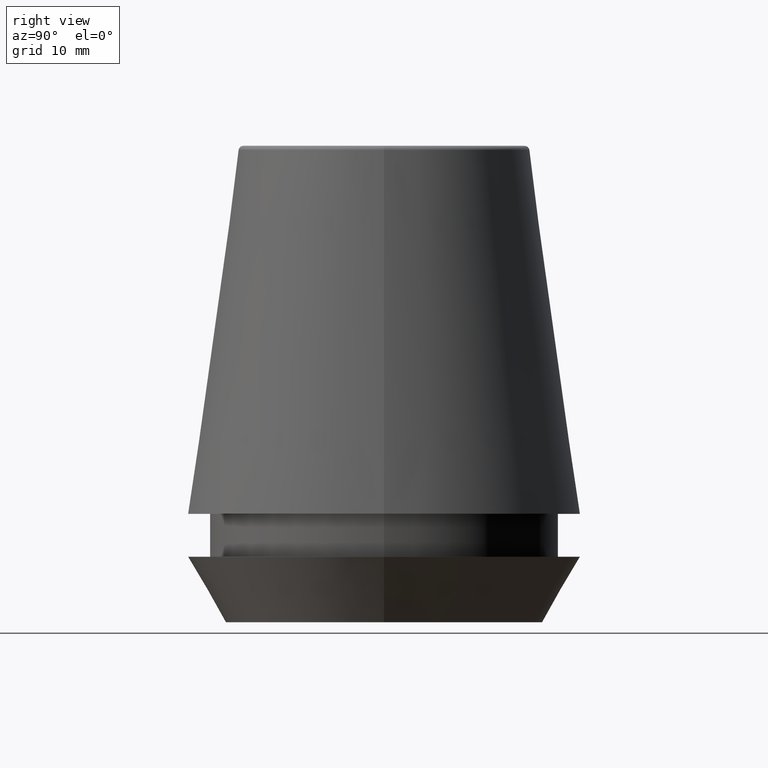
[diagram: clean part render]
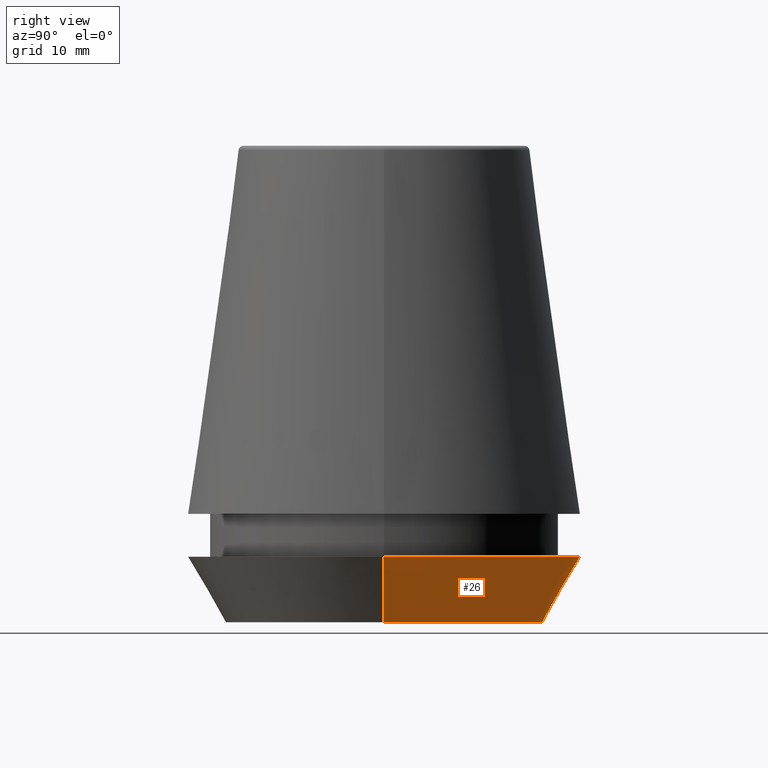
[diagram: same view with one face highlighted and labeled with its STEP entity id]
A machine part, right view. The second image highlights one B-rep face of the part: STEP entity #26.
In plain terms, the highlighted conical surface has half-angle 30 deg.
Its self-contained STEP definition (entity closure, byte-faithful):
#1 = DIRECTION ( 'NONE',  ( 1.000000000000000000, 0.0000000000000000000, 0.0000000000000000000 ) ) ;
#4 = EDGE_CURVE ( 'NONE', #273, #23, #179, .T. ) ;
#6 = ORIENTED_EDGE ( 'NONE', *, *, #310, .T. ) ;
#7 = CARTESIAN_POINT ( 'NONE',  ( 0.0000000000000000000, 0.0000000000000000000, 0.0000000000000000000 ) ) ;
#23 = VERTEX_POINT ( 'NONE', #118 ) ;
#26 = ADVANCED_FACE ( 'NONE', ( #64 ), #275, .T. ) ;
#49 = CARTESIAN_POINT ( 'NONE',  ( -13.32457351945710200, 1.826228424826902600E-015, 0.0000000000000000000 ) ) ;
#52 = DIRECTION ( 'NONE',  ( -0.0000000000000000000, -0.0000000000000000000, 1.000000000000000000 ) ) ;
#58 = ORIENTED_EDGE ( 'NONE', *, *, #195, .F. ) ;
#64 = FACE_OUTER_BOUND ( 'NONE', #187, .T. ) ;
#69 = ORIENTED_EDGE ( 'NONE', *, *, #269, .F. ) ;
#75 = VERTEX_POINT ( 'NONE', #249 ) ;
#87 = DIRECTION ( 'NONE',  ( -0.0000000000000000000, -0.0000000000000000000, 1.000000000000000000 ) ) ;
#96 = VECTOR ( 'NONE', #354, 999.9999999999998900 ) ;
#98 = DIRECTION ( 'NONE',  ( 0.4999999999999947300, 0.0000000000000000000, 0.8660254037844418200 ) ) ;
#110 = DIRECTION ( 'NONE',  ( 1.000000000000000000, 0.0000000000000000000, 0.0000000000000000000 ) ) ;
#114 = VERTEX_POINT ( 'NONE', #218 ) ;
#116 = CIRCLE ( 'NONE', #295, 16.50000000000000000 ) ;
#117 = VECTOR ( 'NONE', #98, 999.9999999999998900 ) ;
#118 = CARTESIAN_POINT ( 'NONE',  ( -16.50000000000000000, 2.020667218593133100E-015, 5.500000000000005300 ) ) ;
#141 = CARTESIAN_POINT ( 'NONE',  ( 0.0000000000000000000, 0.0000000000000000000, 5.500000000000005300 ) ) ;
#158 = AXIS2_PLACEMENT_3D ( 'NONE', #7, #238, #1 ) ;
#178 = CARTESIAN_POINT ( 'NONE',  ( -13.32457351945710200, 1.631789631060672300E-015, 0.0000000000000000000 ) ) ;
#179 = LINE ( 'NONE', #178, #96 ) ;
#187 = EDGE_LOOP ( 'NONE', ( #6, #305, #58, #69 ) ) ;
#195 = EDGE_CURVE ( 'NONE', #114, #23, #116, .T. ) ;
#218 = CARTESIAN_POINT ( 'NONE',  ( 16.50000000000000000, 0.0000000000000000000, 5.500000000000005300 ) ) ;
#228 = CARTESIAN_POINT ( 'NONE',  ( 0.0000000000000000000, 0.0000000000000000000, 0.0000000000000000000 ) ) ;
#233 = AXIS2_PLACEMENT_3D ( 'NONE', #228, #52, #258 ) ;
#238 = DIRECTION ( 'NONE',  ( -0.0000000000000000000, -0.0000000000000000000, 1.000000000000000000 ) ) ;
#249 = CARTESIAN_POINT ( 'NONE',  ( 13.32457351945710200, 0.0000000000000000000, 0.0000000000000000000 ) ) ;
#256 = CIRCLE ( 'NONE', #233, 13.32457351945710200 ) ;
#258 = DIRECTION ( 'NONE',  ( 1.000000000000000000, 0.0000000000000000000, 0.0000000000000000000 ) ) ;
#269 = EDGE_CURVE ( 'NONE', #75, #114, #351, .T. ) ;
#273 = VERTEX_POINT ( 'NONE', #49 ) ;
#275 = CONICAL_SURFACE ( 'NONE', #158, 13.32457351945710200, 0.5235987755982927100 ) ;
#293 = CARTESIAN_POINT ( 'NONE',  ( 13.32457351945710200, 0.0000000000000000000, 0.0000000000000000000 ) ) ;
#295 = AXIS2_PLACEMENT_3D ( 'NONE', #141, #87, #110 ) ;
#305 = ORIENTED_EDGE ( 'NONE', *, *, #4, .T. ) ;
#310 = EDGE_CURVE ( 'NONE', #75, #273, #256, .T. ) ;
#351 = LINE ( 'NONE', #293, #117 ) ;
#354 = DIRECTION ( 'NONE',  ( -0.4999999999999947300, 6.123233995736700700E-017, 0.8660254037844418200 ) ) ;